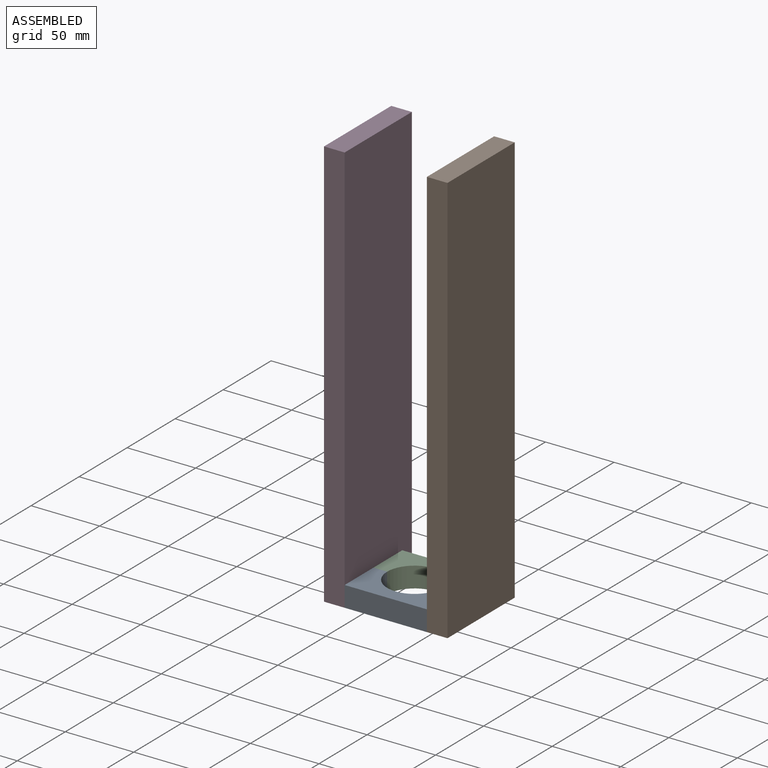
[diagram: assembled view]
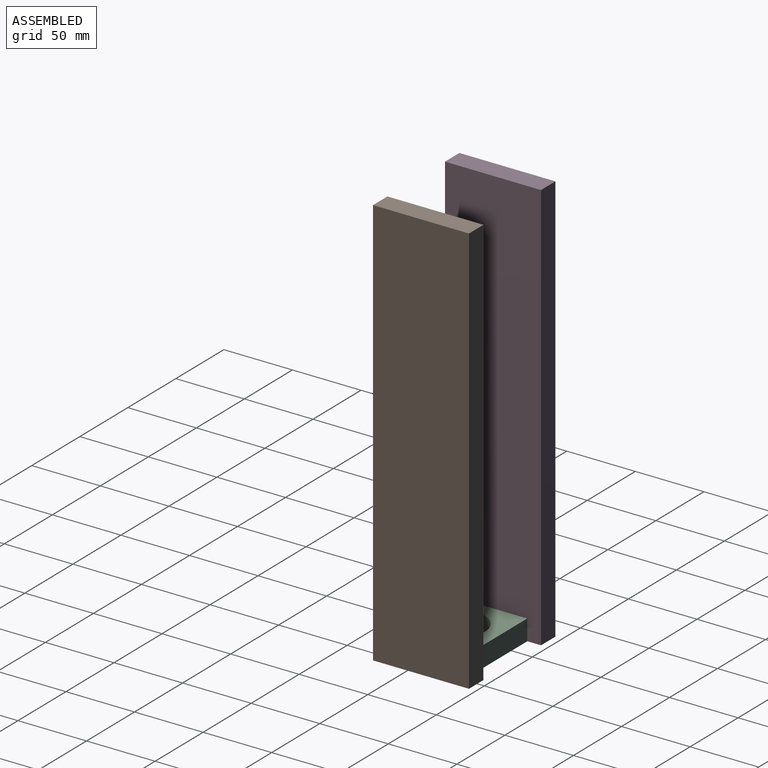
[diagram: assembled view, second angle]
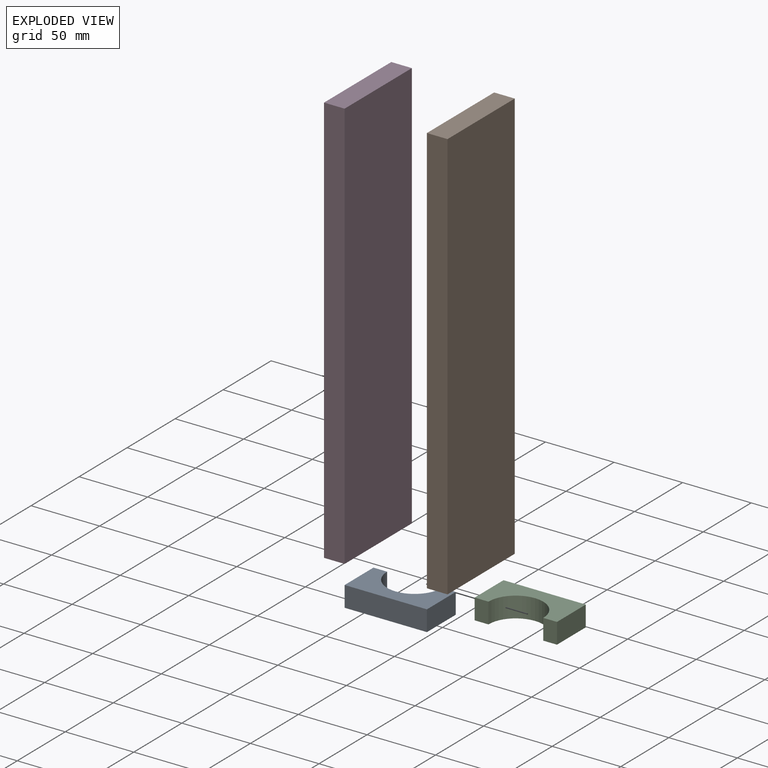
[diagram: exploded view]
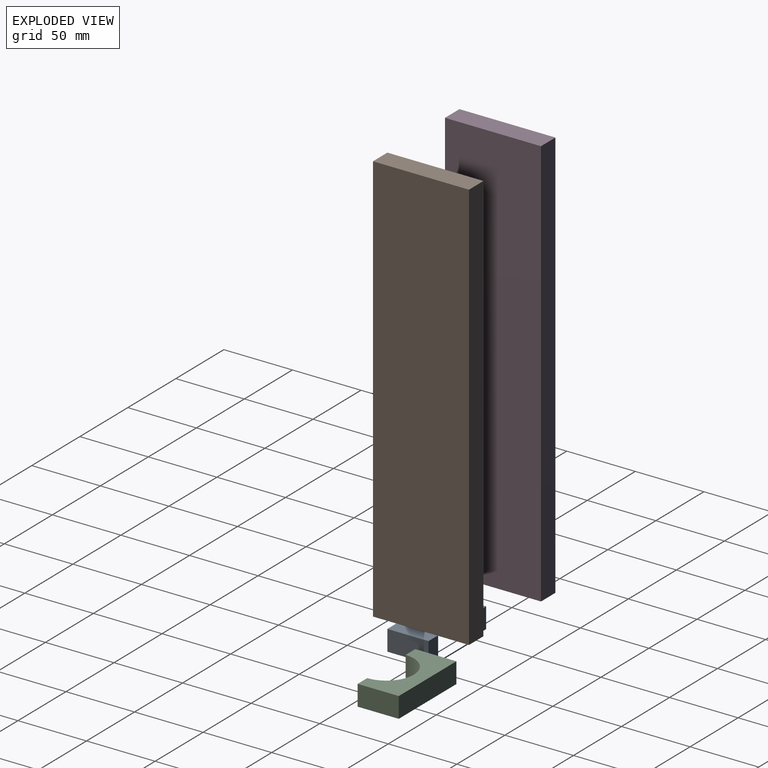
[diagram: exploded view, second angle]
ASSEMBLY  parts=4 mates=9
PART A: 8 faces, bbox 60x30x15 mm
  f0: plane 60x15mm, normal (0,-1,0), area 900mm2, adj f1,f5,f6,f7
  f1: plane 30x15mm, normal (1,0,0), area 450mm2, adj f0,f2,f6,f7
  f2: plane 15x10mm, normal (0,1,0), area 150mm2, adj f1,f3,f6,f7
  f3: cylinder r=20mm len=40mm, axis (0,0,-1), area 942.5mm2, adj f2,f4,f6,f7
  f4: plane 15x10mm, normal (0,1,0), area 150mm2, adj f3,f5,f6,f7
  f5: plane 30x15mm, normal (-1,0,0), area 450mm2, adj f0,f4,f6,f7
  f6: plane 60x30mm, normal (0,0,1), area 1171.7mm2, adj f0,f1,f2,f3,f4,f5
  f7: plane 60x30mm, normal (0,0,-1), area 1171.7mm2, adj f0,f1,f2,f3,f4,f5
PART B: 6 faces, bbox 15x70x300 mm
  f0: plane 300x15mm, normal (0,1,0), area 4500mm2, adj f1,f3,f4,f5
  f1: plane 70x15mm, normal (0,0,1), area 1050mm2, adj f0,f2,f4,f5
  f2: plane 300x15mm, normal (0,-1,0), area 4500mm2, adj f1,f3,f4,f5
  f3: plane 70x15mm, normal (0,0,-1), area 1050mm2, adj f0,f2,f4,f5
  f4: plane 300x70mm, normal (1,0,0), area 21000mm2, adj f0,f1,f2,f3
  f5: plane 300x70mm, normal (-1,0,0), area 21000mm2, adj f0,f1,f2,f3
PART C: same geometry as A
PART D: same geometry as B
PLACE A t=(-27.9,-19.2,-13.23)mm
PLACE B t=(2.1,50.8,-13.23)mm
PLACE C rot(axis=(1,0,0),180deg) t=(-27.9,40.8,1.77)mm
PLACE D t=(-72.9,50.8,-13.23)mm
MATE planar A.f7 <-> D.f3  axis (0,0,-1) through (-27.9,-7.69,-13.23)mm
MATE planar A.f1 <-> C.f1  axis (1,0,0) through (2.1,-4.2,-5.73)mm
MATE planar A.f0 <-> D.f2  axis (0,-1,0) through (-27.9,-19.2,-5.73)mm
MATE planar A.f5 <-> D.f4  axis (-1,0,0) through (-57.9,-4.2,-5.73)mm
MATE planar A.f6 <-> C.f7  axis (0,0,1) through (-27.9,-7.69,1.77)mm
MATE fastened C.f2 <-> A.f2  axis (0,-1,0) through (-2.9,10.8,-5.73)mm
MATE planar B.f3 <-> A.f7  axis (0,0,-1) through (9.6,15.8,-13.23)mm
MATE planar B.f5 <-> A.f1  axis (-1,0,0) through (2.1,15.8,136.77)mm
MATE planar B.f2 <-> A.f0  axis (0,-1,0) through (9.6,-19.2,136.77)mm
